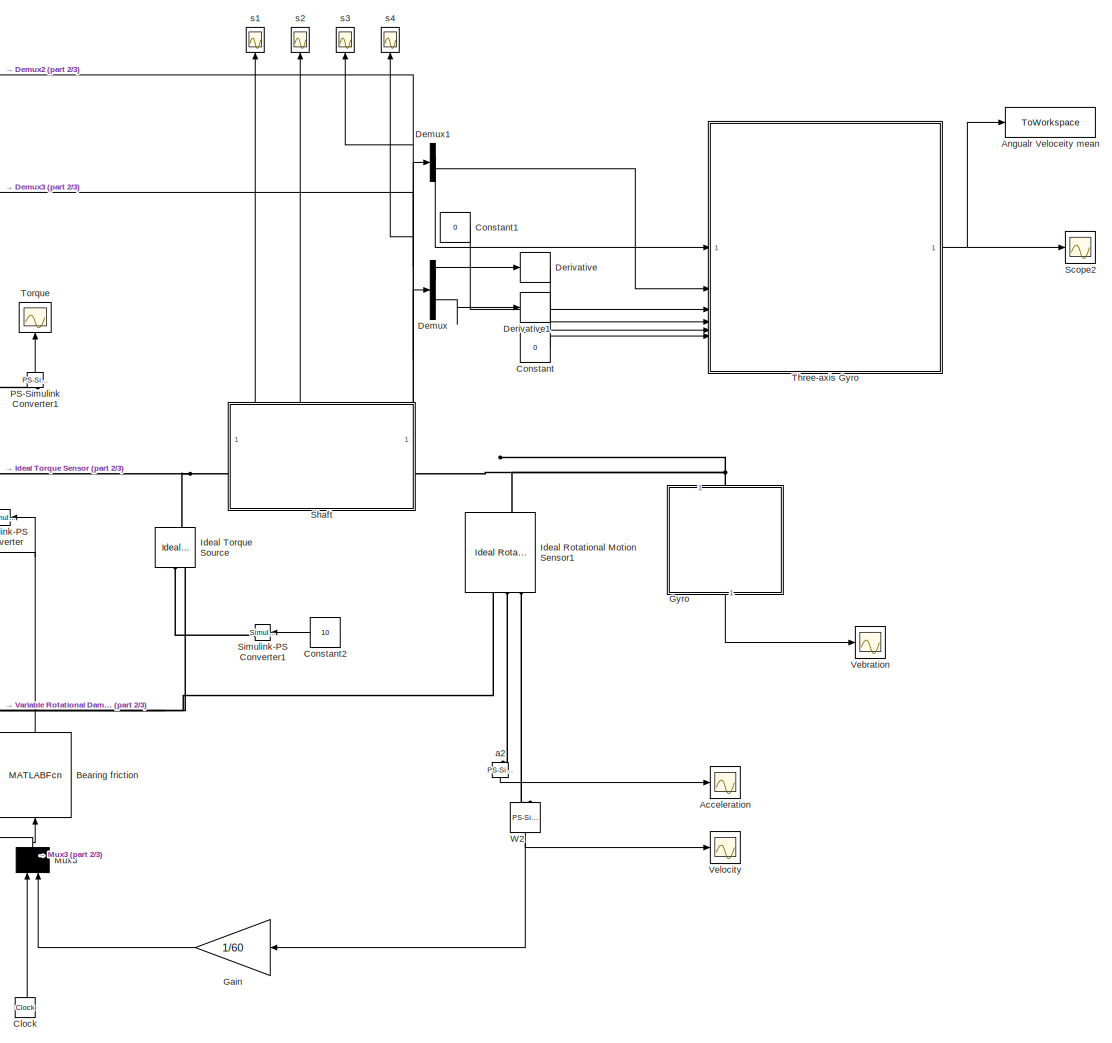
[diagram: root canvas - part 1/3, right side, full height]
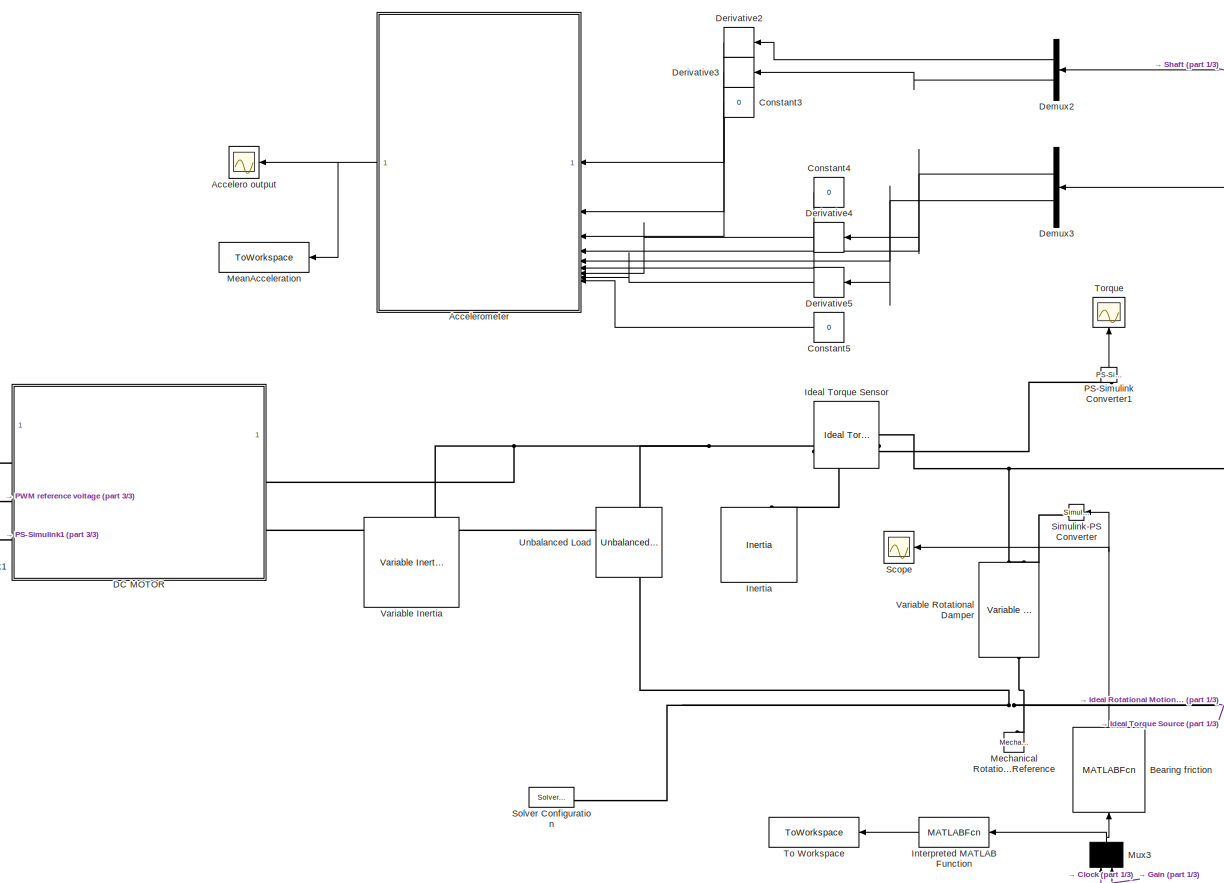
[diagram: root canvas - part 2/3, center side, full height]
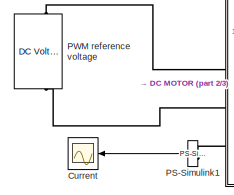
[diagram: root canvas - part 3/3, middle left region]
MODEL slx_98849718ec95
KIND model
CONFIG AbsTol = auto
CONFIG EnableMultiTasking = off
CONFIG FixedStep = auto
CONFIG MaxStep = auto
CONFIG MinStep = auto
CONFIG RelTol = 1e-3
CONFIG SampleTimeConstraint = Unconstrained
CONFIG SolverName = VariableStepAuto
CONFIG StartTime = 0.0
CONFIG StopTime = 15
BLOCK [Scope] Acceleration
  ActiveDisplayYMaximum = 102.15664
  ActiveDisplayYMinimum = -11.35074
  DataLoggingVariableName = ScopeData1
  Floating = off
  GraphicalSettings = {"GraphicalSettings":{"LegacySettings":true,"Style":{"Style":{"AxesColor":"[0 0 0]","ChannelNames":[""],"ColorOrder":"[1 0.909803921568627 0.392156862745098;0.149019607843137 0.549019607843137 0.866666666666667;0.96078431372549 0.466666666666667 0.16078431372549;0.286274509803922 0.858823529411765 0.250980392156863;0.752941176470588 0.36078431372549 0.984313725490196;0.423529411764706 0.9568627450...<+432ch>
  MultipleDisplayCache = [{"MaxYLimMag":102.15664,"MaxYLimReal":102.15664,"MinYLimMag":0,"MinYLimReal":-11.35074,"PlotAsMagnitudePhase":false,"ShowGrid":true,"ShowLegend":false,"Title":"%<SignalLabel>","YLabel":""}]
  NumInputPorts = 1
  WasSavedAsWebScope = on
BLOCK [Scope] Accelero output
  ActiveDisplayYMaximum = 11.58913
  ActiveDisplayYMinimum = -1.63436
  DataLoggingVariableName = ScopeData5
  Floating = off
  GraphicalSettings = {"Style":{"BackgroundColor":[0.12941176470588237,0.12941176470588237,0.12941176470588237],"AxesColor":[0.07058823529411765,0.07058823529411765,0.07058823529411765],"LabelsColor":[0.8509803921568627,0.8509803921568627,0.8509803921568627],"PreserveColors":false,"Visible":[true,true,true],"LineStyle":["-","-","-"],"LineWidth":[1.5,1.5,1.5],"BarWidth":[0.9,0.9,0.9],"LineColor":["auto","auto","auto"],"...<+2691ch>
  MultipleDisplayCache = [{"MaxYLimMag":11.58913,"MaxYLimReal":11.58913,"MinYLimMag":0,"MinYLimReal":-1.63436,"PlotAsMagnitudePhase":false,"ShowGrid":true,"ShowLegend":true,"Title":"%<SignalLabel>","YLabel":""}]
  NameLocation = top
  NumInputPorts = 1
  ScopeFrameLocation = window
  ShowLegend = on
  WasSavedAsWebScope = on
  WindowPosition = [1.000000,49.000000,1920.000000,1009.000000,]
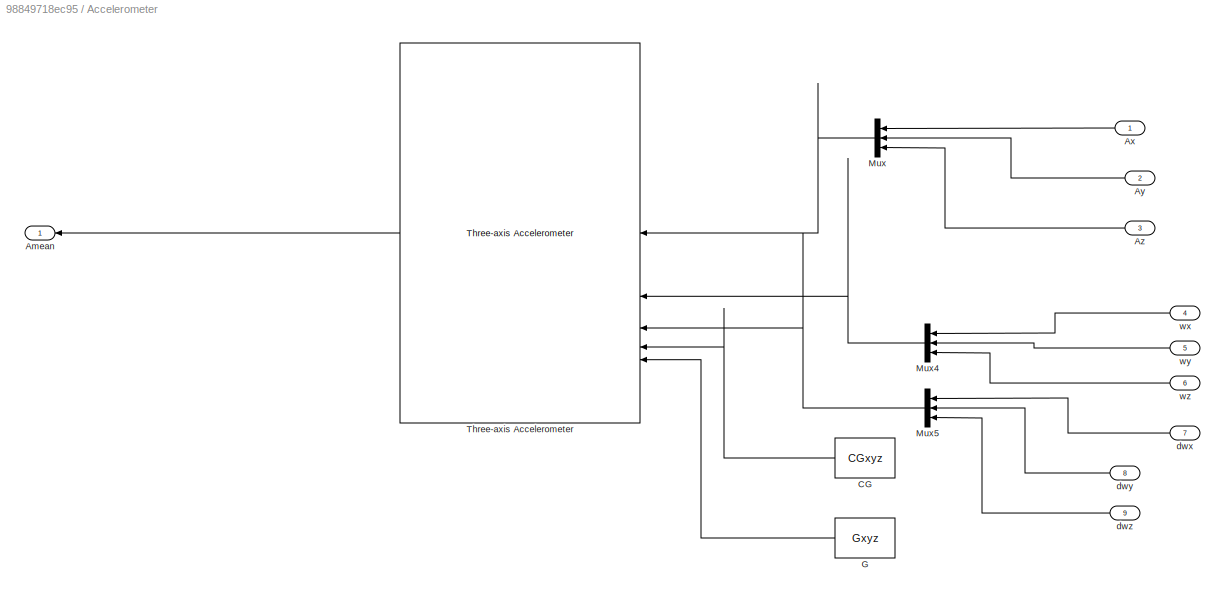
BLOCK [SubSystem] Accelerometer
  NameLocation = top
BLOCK [Outport] Accelerometer/Amean
BLOCK [Inport] Accelerometer/Ax
BLOCK [Inport] Accelerometer/Ay
  Port = 2
BLOCK [Inport] Accelerometer/Az
  Port = 3
BLOCK [Constant] Accelerometer/CG
  NameLocation = top
  Value = CGxyz
BLOCK [Constant] Accelerometer/G
  NameLocation = top
  Value = Gxyz
BLOCK [Mux] Accelerometer/Mux
  DisplayOption = bar
  Inputs = 3
  NameLocation = top
BLOCK [Mux] Accelerometer/Mux4
  DisplayOption = bar
  Inputs = 3
  NameLocation = top
BLOCK [Mux] Accelerometer/Mux5
  DisplayOption = bar
  Inputs = 3
  NameLocation = top
BLOCK [Reference] Accelerometer/Three-axis Accelerometer  REF=aerolibnav/Three-axis Accelerometer
  NameLocation = top
  SourceBlock = aerolibnav/Three-axis Accelerometer
  SourceType = Three-axis Accelerometer
BLOCK [Inport] Accelerometer/dwx
  Port = 7
BLOCK [Inport] Accelerometer/dwy
  Port = 8
BLOCK [Inport] Accelerometer/dwz
  Port = 9
BLOCK [Inport] Accelerometer/wx
  Port = 4
BLOCK [Inport] Accelerometer/wy
  Port = 5
BLOCK [Inport] Accelerometer/wz
  Port = 6
BLOCK [ToWorkspace] Angualr Veloceity mean
  Commented = on
  FixptAsFi = on
  MaxDataPoints = inf
  SampleTime = -1
  Save2DSignal = 2-D array (concatenate along first dimension)
  VariableName = gyroOut
BLOCK [MATLABFcn] Bearing friction
  MATLABFcn = bearing_stiffness
  NameLocation = right
BLOCK [Clock] Clock
  NameLocation = right
BLOCK [Constant] Constant
  Commented = on
  Value = 0
BLOCK [Constant] Constant1
  Commented = on
  Value = 0
BLOCK [Constant] Constant2
  NameLocation = top
  Value = 10
BLOCK [Constant] Constant3
  NameLocation = top
  Value = 0
BLOCK [Constant] Constant4
  NameLocation = top
  Value = 0
BLOCK [Constant] Constant5
  NameLocation = top
  Value = 0
BLOCK [Scope] Current
  ActiveDisplayYMaximum = 141.8385
  ActiveDisplayYMinimum = -15.75983
  DataLogging = on
  DataLoggingDecimateData = on
  DataLoggingDecimation = 1
  DataLoggingSaveFormat = Structure With Time
  DataLoggingVariableName = ScopeData2
  Floating = off
  GraphicalSettings = {"GraphicalSettings":{"LegacySettings":true,"Style":{"AxesScalingProperties":{"ScaleAxesLimitsAtStop":false},"Style":{"AxesColor":"[0 0 0]","ChannelNames":[""],"ColorOrder":"[1 0.909803921568627 0.392156862745098;0.149019607843137 0.549019607843137 0.866666666666667;0.96078431372549 0.466666666666667 0.16078431372549;0.286274509803922 0.858823529411765 0.250980392156863;0.752941176470588 0.3607843...<+513ch>
  MultipleDisplayCache = [{"MaxYLimMag":141.8385,"MaxYLimReal":141.8385,"MinYLimMag":0,"MinYLimReal":-15.75983,"PlotAsMagnitudePhase":false,"ShowGrid":true,"ShowLegend":false,"Title":"%<SignalLabel>","YLabel":""}]
  NameLocation = top
  NumInputPorts = 1
  TimeSpan = 10
  WasSavedAsWebScope = on
  WindowPosition = [1 49 1920 955]
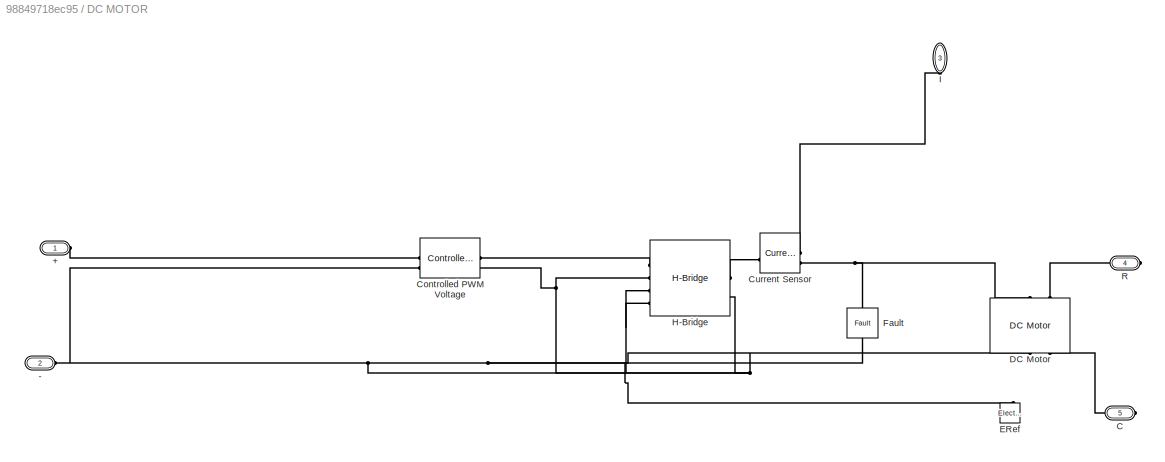
BLOCK [SubSystem] DC MOTOR
BLOCK [PMIOPort] DC MOTOR/+
  Side = Left
BLOCK [PMIOPort] DC MOTOR/-
  Port = 2
  Side = Left
BLOCK [PMIOPort] DC MOTOR/C
  Port = 5
  Side = Right
BLOCK [Reference] DC MOTOR/Controlled PWM Voltage  REF=ee_lib/Integrated Circuits/Controlled PWM
Voltage
  SourceBlock = ee_lib/Integrated Circuits/Controlled PWM\nVoltage
  SourceType = Controlled PWM\nVoltage
BLOCK [Reference] DC MOTOR/Current Sensor  REF=fl_lib/Electrical/Electrical Sensors/Current Sensor
  NameLocation = top
  SourceBlock = fl_lib/Electrical/Electrical Sensors/Current Sensor
  SourceType = Current Sensor
BLOCK [Reference] DC MOTOR/DC Motor  REF=ee_lib/Electromechanical/Brushed Motors/DC Motor
  AttributesFormatString = Maxon:RE_65_388985_24
  NameLocation = left
  SourceBlock = ee_lib/Electromechanical/Brushed Motors/DC Motor
  SourceType = DC Motor
BLOCK [Reference] DC MOTOR/ERef  REF=fl_lib/Electrical/Electrical Elements/Electrical Reference
  NameLocation = left
  SourceBlock = fl_lib/Electrical/Electrical Elements/Electrical Reference
  SourceType = Electrical Reference
BLOCK [Reference] DC MOTOR/Fault  REF=ee_lib/Utilities/Fault
  Commented = on
  NameLocation = left
  SourceBlock = ee_lib/Utilities/Fault
  SourceType = Fault
BLOCK [Reference] DC MOTOR/H-Bridge  REF=ee_lib/Semiconductors &
Converters/Converters/H-Bridge
  SourceBlock = ee_lib/Semiconductors &\nConverters/Converters/H-Bridge
  SourceType = H-Bridge
BLOCK [PMIOPort] DC MOTOR/I
  NameLocation = right
  Port = 3
  Side = Left
BLOCK [PMIOPort] DC MOTOR/R
  Port = 4
  Side = Right
BLOCK [Demux] Demux
  Commented = on
BLOCK [Demux] Demux1
  Commented = on
BLOCK [Demux] Demux2
  NameLocation = top
BLOCK [Demux] Demux3
  NameLocation = top
BLOCK [Derivative] Derivative
  Commented = on
BLOCK [Derivative] Derivative1
  Commented = on
BLOCK [Derivative] Derivative2
  NameLocation = top
BLOCK [Derivative] Derivative3
  NameLocation = top
BLOCK [Derivative] Derivative4
  NameLocation = top
BLOCK [Derivative] Derivative5
  NameLocation = top
BLOCK [Gain] Gain
  Gain = 1/60
  NameLocation = top
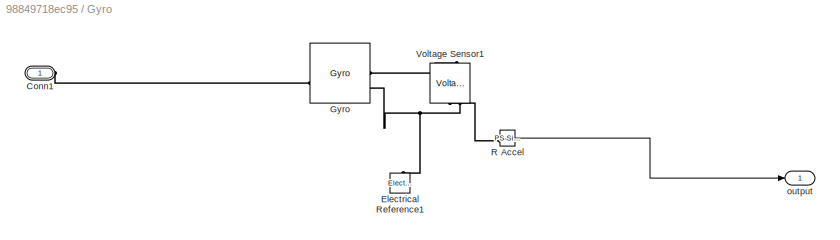
BLOCK [SubSystem] Gyro
  Commented = on
  NameLocation = left
BLOCK [PMIOPort] Gyro/Conn1
  Side = Left
BLOCK [Reference] Gyro/Electrical Reference1  REF=fl_lib/Electrical/Electrical Elements/Electrical Reference
  NameLocation = right
  SourceBlock = fl_lib/Electrical/Electrical Elements/Electrical Reference
  SourceType = Electrical Reference
BLOCK [Reference] Gyro/Gyro  REF=ee_lib/Sensors &
Transducers/Gyro
  SourceBlock = ee_lib/Sensors &\nTransducers/Gyro
  SourceType = Gyro
BLOCK [Reference] Gyro/R Accel  REF=nesl_utility/PS-Simulink
Converter
  SourceBlock = nesl_utility/PS-Simulink\nConverter
  SourceType = PS-Simulink\nConverter
BLOCK [Reference] Gyro/Voltage Sensor1  REF=fl_lib/Electrical/Electrical Sensors/Voltage Sensor
  NameLocation = right
  SourceBlock = fl_lib/Electrical/Electrical Sensors/Voltage Sensor
  SourceType = Voltage Sensor
BLOCK [Outport] Gyro/output
BLOCK [Reference] Ideal Rotational Motion Sensor1  REF=fl_lib/Mechanical/Mechanical Sensors/Ideal Rotational
Motion Sensor
  NameLocation = right
  SourceBlock = fl_lib/Mechanical/Mechanical Sensors/Ideal Rotational\nMotion Sensor
  SourceType = Ideal Rotational\nMotion Sensor
BLOCK [Reference] Ideal Torque Sensor  REF=fl_lib/Mechanical/Mechanical Sensors/Ideal Torque Sensor
  SourceBlock = fl_lib/Mechanical/Mechanical Sensors/Ideal Torque Sensor
  SourceType = Ideal Torque Sensor
BLOCK [Reference] Ideal Torque Source  REF=fl_lib/Mechanical/Mechanical Sources/Ideal Torque Source
  Commented = on
  NameLocation = right
  SourceBlock = fl_lib/Mechanical/Mechanical Sources/Ideal Torque Source
  SourceType = Ideal Torque Source
BLOCK [Reference] Inertia  REF=fl_lib/Mechanical/Rotational Elements/Inertia
  NameLocation = right
  SourceBlock = fl_lib/Mechanical/Rotational Elements/Inertia
  SourceType = Inertia
BLOCK [MATLABFcn] Interpreted MATLAB Function
  MATLABFcn = damping
  NameLocation = top
BLOCK [ToWorkspace] MeanAcceleration
  FixptAsFi = on
  MaxDataPoints = inf
  NameLocation = top
  SampleTime = -1
  Save2DSignal = 2-D array (concatenate along first dimension)
  SaveFormat = Structure With Time
  VariableName = AcceleroOut
BLOCK [Reference] Mechanical Rotational Reference  REF=fl_lib/Mechanical/Rotational Elements/Mechanical
Rotational Reference
  NameLocation = right
  SourceBlock = fl_lib/Mechanical/Rotational Elements/Mechanical\nRotational Reference
  SourceType = Mechanical\nRotational Reference
BLOCK [Mux] Mux3
  DisplayOption = bar
  Inputs = 2
  NameLocation = right
BLOCK [Reference] PS-Simulink Converter1  REF=nesl_utility/PS-Simulink
Converter
  NameLocation = right
  SourceBlock = nesl_utility/PS-Simulink\nConverter
  SourceType = PS-Simulink\nConverter
BLOCK [Reference] PS-Simulink1  REF=nesl_utility/PS-Simulink
Converter
  NameLocation = top
  SourceBlock = nesl_utility/PS-Simulink\nConverter
  SourceType = PS-Simulink\nConverter
BLOCK [Reference] PWM reference voltage  REF=fl_lib/Electrical/Electrical Sources/DC Voltage Source
  NameLocation = right
  SourceBlock = fl_lib/Electrical/Electrical Sources/DC Voltage Source
  SourceType = DC Voltage Source
BLOCK [Scope] Scope
  ActiveDisplayYMaximum = 0.1125
  ActiveDisplayYMinimum = 0.0875
  Commented = on
  DataLoggingVariableName = ScopeData1
  Floating = off
  GraphicalSettings = {"GraphicalSettings":{"LegacySettings":true,"Style":{"Style":{"AxesColor":"[0 0 0]","ChannelNames":[""],"ColorOrder":"[1 0.909803921568627 0.392156862745098;0.149019607843137 0.549019607843137 0.866666666666667;0.96078431372549 0.466666666666667 0.16078431372549;0.286274509803922 0.858823529411765 0.250980392156863;0.752941176470588 0.36078431372549 0.984313725490196;0.423529411764706 0.9568627450...<+432ch>
  MultipleDisplayCache = [{"MaxYLimMag":0.1125,"MaxYLimReal":0.1125,"MinYLimMag":0.0875,"MinYLimReal":0.0875,"PlotAsMagnitudePhase":false,"ShowGrid":true,"ShowLegend":false,"Title":"%<SignalLabel>","YLabel":""}]
  NameLocation = top
  NumInputPorts = 1
  WasSavedAsWebScope = on
  WindowPosition = [1 49 1920 955]
BLOCK [Scope] Scope2
  ActiveDisplayYMaximum = 0.11963
  ActiveDisplayYMinimum = -0.10232
  Commented = on
  DataLoggingVariableName = ScopeData6
  Floating = off
  GraphicalSettings = {"GraphicalSettings":{"LegacySettings":true,"Style":{"Style":{"AxesColor":"[0 0 0]","ChannelNames":[""],"ColorOrder":"[1 0.909803921568627 0.392156862745098;0.149019607843137 0.549019607843137 0.866666666666667;0.96078431372549 0.466666666666667 0.16078431372549;0.286274509803922 0.858823529411765 0.250980392156863;0.752941176470588 0.36078431372549 0.984313725490196;0.423529411764706 0.9568627450...<+438ch>
  MultipleDisplayCache = [{"MaxYLimMag":0.11963,"MaxYLimReal":0.11963,"MinYLimMag":0,"MinYLimReal":-0.10232,"PlotAsMagnitudePhase":false,"ShowGrid":true,"ShowLegend":false,"Title":"%<SignalLabel>","YLabel":""}]
  NumInputPorts = 1
  WasSavedAsWebScope = on
  WindowPosition = [1 49 1920 955]
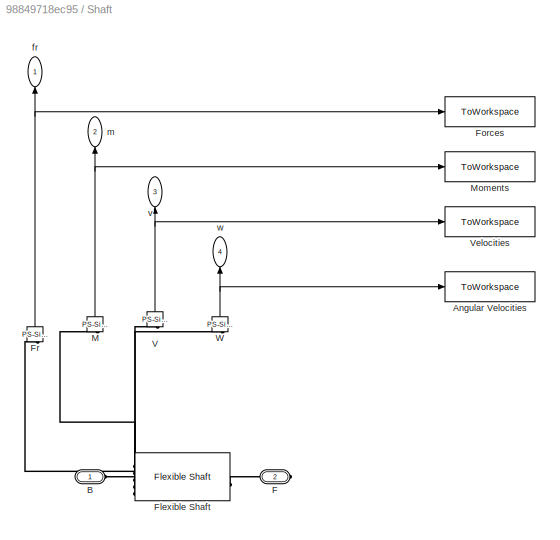
BLOCK [SubSystem] Shaft
  PortSchema = {"entries":[{"content":{"sides":[{"content":{"connectorIds":["LConn1"]},"type":"ConnectorPlacement.EquallySpacedRectSide","uuid":"3857fe44-01bc-4751-8e4d-1dad1ce500eb"},{"content":{"connectorIds":["RConn1"],"side":"RIGHT"},"type":"ConnectorPlacement.EquallySpacedRectSide","uuid":"6a019b46-4414-4623-8f21-6865903b21bc"},{"content":{"connectorIds":["Out1","Out2","Out3","Out4"],"side":"TOP"},"type":"C...<+272ch>
BLOCK [ToWorkspace] Shaft/Angular Velocities
  FixptAsFi = on
  MaxDataPoints = inf
  SampleTime = -1
  Save2DSignal = 2-D array (concatenate along first dimension)
  VariableName = W
BLOCK [PMIOPort] Shaft/B
  Side = Left
BLOCK [PMIOPort] Shaft/F
  Port = 2
  Side = Right
BLOCK [Reference] Shaft/Flexible Shaft  REF=sdl_lib/Couplings & Drives/Flexible Shaft
  SourceBlock = sdl_lib/Couplings & Drives/Flexible Shaft
  SourceType = Flexible Shaft
BLOCK [ToWorkspace] Shaft/Forces
  FixptAsFi = on
  MaxDataPoints = inf
  SampleTime = -1
  Save2DSignal = 2-D array (concatenate along first dimension)
  VariableName = Fr
BLOCK [Reference] Shaft/Fr  REF=nesl_utility/PS-Simulink
Converter
  NameLocation = right
  SourceBlock = nesl_utility/PS-Simulink\nConverter
  SourceType = PS-Simulink\nConverter
BLOCK [Reference] Shaft/M  REF=nesl_utility/PS-Simulink
Converter
  NameLocation = right
  SourceBlock = nesl_utility/PS-Simulink\nConverter
  SourceType = PS-Simulink\nConverter
BLOCK [ToWorkspace] Shaft/Moments
  FixptAsFi = on
  MaxDataPoints = inf
  SampleTime = -1
  Save2DSignal = 2-D array (concatenate along first dimension)
  VariableName = M
BLOCK [Reference] Shaft/V  REF=nesl_utility/PS-Simulink
Converter
  NameLocation = right
  SourceBlock = nesl_utility/PS-Simulink\nConverter
  SourceType = PS-Simulink\nConverter
BLOCK [ToWorkspace] Shaft/Velocities
  FixptAsFi = on
  MaxDataPoints = inf
  SampleTime = -1
  Save2DSignal = 2-D array (concatenate along first dimension)
  VariableName = V
BLOCK [Reference] Shaft/W  REF=nesl_utility/PS-Simulink
Converter
  NameLocation = right
  SourceBlock = nesl_utility/PS-Simulink\nConverter
  SourceType = PS-Simulink\nConverter
BLOCK [Outport] Shaft/fr
  NameLocation = right
BLOCK [Outport] Shaft/m
  NameLocation = right
  Port = 2
BLOCK [Outport] Shaft/v
  NameLocation = right
  Port = 3
BLOCK [Outport] Shaft/w
  NameLocation = right
  Port = 4
BLOCK [Reference] Simulink-PS Converter  REF=nesl_utility/Simulink-PS
Converter
  Commented = on
  SourceBlock = nesl_utility/Simulink-PS\nConverter
  SourceType = Simulink-PS\nConverter
BLOCK [Reference] Simulink-PS Converter1  REF=nesl_utility/Simulink-PS
Converter
  NameLocation = top
  SourceBlock = nesl_utility/Simulink-PS\nConverter
  SourceType = Simulink-PS\nConverter
BLOCK [Reference] Solver Configuration  REF=nesl_utility/Solver
Configuration
  SourceBlock = nesl_utility/Solver\nConfiguration
  SourceType = Solver\nConfiguration
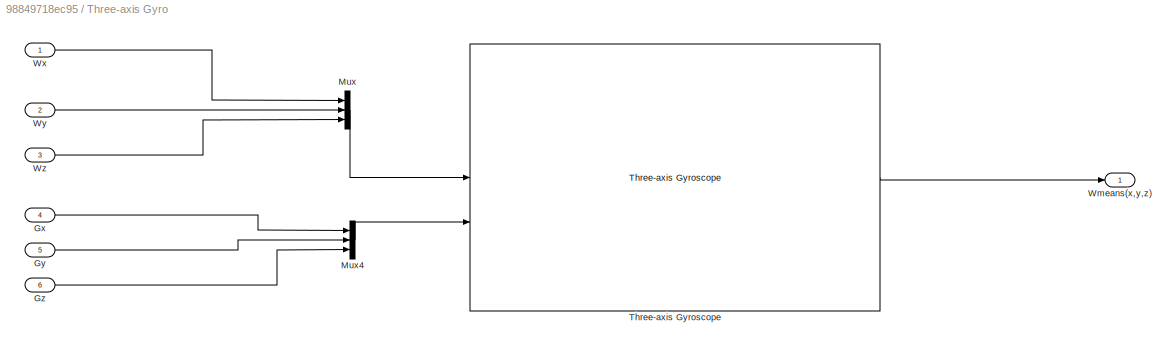
BLOCK [SubSystem] Three-axis Gyro
  Commented = on
BLOCK [Inport] Three-axis Gyro/Gx
  Port = 4
BLOCK [Inport] Three-axis Gyro/Gy
  Port = 5
BLOCK [Inport] Three-axis Gyro/Gz
  Port = 6
BLOCK [Mux] Three-axis Gyro/Mux
  DisplayOption = bar
  Inputs = 3
BLOCK [Mux] Three-axis Gyro/Mux4
  DisplayOption = bar
  Inputs = 3
BLOCK [Reference] Three-axis Gyro/Three-axis Gyroscope  REF=aerolibnav/Three-axis Gyroscope
  SourceBlock = aerolibnav/Three-axis Gyroscope
  SourceType = Three-axis Gyroscope
BLOCK [Outport] Three-axis Gyro/Wmeans(x,y,z)
BLOCK [Inport] Three-axis Gyro/Wx
BLOCK [Inport] Three-axis Gyro/Wy
  Port = 2
BLOCK [Inport] Three-axis Gyro/Wz
  Port = 3
BLOCK [ToWorkspace] To Workspace
  FixptAsFi = on
  MaxDataPoints = inf
  NameLocation = top
  SampleTime = -1
  VariableName = damp
BLOCK [Scope] Torque
  ActiveDisplayYMaximum = 2.30248
  ActiveDisplayYMinimum = -0.25583
  DataLoggingVariableName = ScopeData7
  Floating = off
  GraphicalSettings = {"GraphicalSettings":{"LegacySettings":true,"Style":{"AxesScalingProperties":{"ScaleAxesLimitsAtStop":false},"Stats":{"Enabled":"true"},"Style":{"AxesColor":"[0 0 0]","ChannelNames":[""],"ColorOrder":"[1 0.909803921568627 0.392156862745098;0.149019607843137 0.549019607843137 0.866666666666667;0.96078431372549 0.466666666666667 0.16078431372549;0.286274509803922 0.858823529411765 0.250980392156863;...<+655ch>
  MultipleDisplayCache = [{"MaxYLimMag":2.30248,"MaxYLimReal":2.30248,"MinYLimMag":0,"MinYLimReal":-0.25583,"PlotAsMagnitudePhase":false,"ShowGrid":true,"ShowLegend":true,"Title":"%<SignalLabel>","YLabel":""}]
  NameLocation = right
  NumInputPorts = 1
  ShowLegend = on
  WasSavedAsWebScope = on
  WindowPosition = [1 49 1920 955]
BLOCK [Reference] Unbalanced Load  REF=sdl_lib/Inertias & Loads/Unbalanced Load
  Commented = on
  NameLocation = right
  SourceBlock = sdl_lib/Inertias & Loads/Unbalanced Load
  SourceType = Unbalanced Load
BLOCK [Reference] Variable Inertia  REF=sdl_lib/Inertias & Loads/Variable Inertia
  Commented = on
  NameLocation = right
  SourceBlock = sdl_lib/Inertias & Loads/Variable Inertia
  SourceType = Variable Inertia
BLOCK [Reference] Variable Rotational Damper  REF=sdl_lib/Couplings & Drives/Springs & Dampers/Variable Rotational
Damper
  Commented = on
  NameLocation = left
  SourceBlock = sdl_lib/Couplings & Drives/Springs & Dampers/Variable Rotational\nDamper
  SourceType = Variable Rotational\nDamper
BLOCK [Scope] Vebration
  ActiveDisplayYMaximum = 4.00000000000009
  ActiveDisplayYMinimum = 3.99999999999988
  Commented = on
  DataLoggingVariableName = ScopeData8
  Floating = off
  GraphicalSettings = {"GraphicalSettings":{"LegacySettings":true,"Style":{"AxesScalingProperties":{"ScaleAxesLimitsAtStop":false},"Stats":{"Enabled":"true"},"Style":{"AxesColor":"[0 0 0]","ChannelNames":[""],"ColorOrder":"[1 0.909803921568627 0.392156862745098;0.149019607843137 0.549019607843137 0.866666666666667;0.96078431372549 0.466666666666667 0.16078431372549;0.286274509803922 0.858823529411765 0.250980392156863;...<+563ch>
  MultipleDisplayCache = [{"MaxYLimMag":4.00000000000009,"MaxYLimReal":4.00000000000009,"MinYLimMag":3.99999999999988,"MinYLimReal":3.99999999999988,"PlotAsMagnitudePhase":false,"ShowGrid":true,"ShowLegend":false,"Title":"%<SignalLabel>","YLabel":""}]
  NumInputPorts = 1
  WasSavedAsWebScope = on
  WindowPosition = [1 49 1920 955]
BLOCK [Scope] Velocity
  ActiveDisplayYMaximum = 1706.12975
  ActiveDisplayYMinimum = 1665.13861
  DataLoggingVariableName = ScopeData2
  Floating = off
  GraphicalSettings = {"GraphicalSettings":{"LegacySettings":true,"Style":{"AxesScalingProperties":{"ScaleAxesLimitsAtStop":false},"Style":{"AxesColor":"[0 0 0]","ChannelNames":[""],"ColorOrder":"[1 0.909803921568627 0.392156862745098;0.149019607843137 0.549019607843137 0.866666666666667;0.96078431372549 0.466666666666667 0.16078431372549;0.286274509803922 0.858823529411765 0.250980392156863;0.752941176470588 0.3607843...<+488ch>
  MultipleDisplayCache = [{"MaxYLimMag":1706.12975,"MaxYLimReal":1706.12975,"MinYLimMag":1665.13861,"MinYLimReal":1665.13861,"PlotAsMagnitudePhase":false,"ShowGrid":true,"ShowLegend":false,"Title":"%<SignalLabel>","YLabel":""}]
  NumInputPorts = 1
  WasSavedAsWebScope = on
  WindowPosition = [1 49 1920 955]
BLOCK [Reference] W2  REF=nesl_utility/PS-Simulink
Converter
  NameLocation = left
  SourceBlock = nesl_utility/PS-Simulink\nConverter
  SourceType = PS-Simulink\nConverter
BLOCK [Reference] a2  REF=nesl_utility/PS-Simulink
Converter
  NameLocation = left
  SourceBlock = nesl_utility/PS-Simulink\nConverter
  SourceType = PS-Simulink\nConverter
BLOCK [Scope] s1
  ActiveDisplayYMaximum = 103.51357
  ActiveDisplayYMinimum = -163.69257
  DataLoggingVariableName = ScopeData9
  Floating = off
  GraphicalSettings = {"GraphicalSettings":{"LegacySettings":true,"Style":{"AxesScalingProperties":{"ScaleAxesLimitsAtStop":false},"Style":{"AxesColor":"[0 0 0]","ChannelNames":[""],"ColorOrder":"[1 0.909803921568627 0.392156862745098;0.149019607843137 0.549019607843137 0.866666666666667;0.96078431372549 0.466666666666667 0.16078431372549;0.286274509803922 0.858823529411765 0.250980392156863;0.752941176470588 0.3607843...<+636ch>
  MultipleDisplayCache = [{"MaxYLimMag":163.69257,"MaxYLimReal":103.51357,"MinYLimMag":0,"MinYLimReal":-163.69257,"PlotAsMagnitudePhase":false,"ShowGrid":true,"ShowLegend":true,"Title":"%<SignalLabel>","YLabel":""}]
  NameLocation = right
  NumInputPorts = 1
  ShowLegend = on
  WasSavedAsWebScope = on
  WindowPosition = [1 49 1920 955]
BLOCK [Scope] s2
  ActiveDisplayYMaximum = 107.147
  ActiveDisplayYMinimum = -107.14777
  DataLoggingVariableName = ScopeData10
  Floating = off
  GraphicalSettings = {"GraphicalSettings":{"LegacySettings":true,"Style":{"Style":{"AxesColor":"[0 0 0]","ChannelNames":[""],"ColorOrder":"[1 0.909803921568627 0.392156862745098;0.149019607843137 0.549019607843137 0.866666666666667;0.96078431372549 0.466666666666667 0.16078431372549;0.286274509803922 0.858823529411765 0.250980392156863;0.752941176470588 0.36078431372549 0.984313725490196;0.423529411764706 0.9568627450...<+441ch>
  MultipleDisplayCache = [{"MaxYLimMag":107.14777,"MaxYLimReal":107.147,"MinYLimMag":0,"MinYLimReal":-107.14777,"PlotAsMagnitudePhase":false,"ShowGrid":true,"ShowLegend":false,"Title":"%<SignalLabel>","YLabel":""}]
  NameLocation = right
  NumInputPorts = 1
  WasSavedAsWebScope = on
  WindowPosition = [1 49 1920 955]
BLOCK [Scope] s3
  ActiveDisplayYMaximum = 0.01046
  ActiveDisplayYMinimum = -0.01046
  DataLoggingVariableName = ScopeData11
  Floating = off
  GraphicalSettings = {"GraphicalSettings":{"LegacySettings":true,"Style":{"Cursors":{"CursorChannels":"[1 1]","Enabled":"true","Horizontal":"false","LinkToWaveform":"true","LockSpacing":"false","SnapToData":"false","XLocation":"[7.50000000000002 22.5000000000001]","YLocation":"[NaN NaN]"},"Style":{"AxesColor":"[0 0 0]","ChannelNames":[""],"ColorOrder":"[1 0.909803921568627 0.392156862745098;0.149019607843137 0.5490196...<+791ch>
  MultipleDisplayCache = [{"MaxYLimMag":0.01046,"MaxYLimReal":0.01046,"MinYLimMag":0,"MinYLimReal":-0.01046,"PlotAsMagnitudePhase":false,"ShowGrid":true,"ShowLegend":false,"Title":"%<SignalLabel>","YLabel":""}]
  NameLocation = right
  NumInputPorts = 1
  WasSavedAsWebScope = on
  WindowPosition = [1 49 1920 955]
BLOCK [Scope] s4
  ActiveDisplayYMaximum = 0.01718
  ActiveDisplayYMinimum = -0.01718
  Floating = off
  GraphicalSettings = {"GraphicalSettings":{"LegacySettings":true,"Style":{"Cursors":{"CursorChannels":"[1 1]","Enabled":"true","Horizontal":"false","LinkToWaveform":"true","LockSpacing":"false","SnapToData":"false","XLocation":"[7.50000000000002 22.5000000000001]","YLocation":"[NaN NaN]"},"Style":{"AxesColor":"[0 0 0]","ChannelNames":[""],"ColorOrder":"[1 0.909803921568627 0.392156862745098;0.149019607843137 0.5490196...<+889ch>
  MultipleDisplayCache = [{"MaxYLimMag":0.01718,"MaxYLimReal":0.01718,"MinYLimMag":0,"MinYLimReal":-0.01718,"PlotAsMagnitudePhase":false,"ShowGrid":true,"ShowLegend":true,"Title":"%<SignalLabel>","YLabel":""}]
  NameLocation = right
  NumInputPorts = 1
  ShowLegend = on
  WasSavedAsWebScope = on
  WindowPosition = [1 49 1920 955]
LINE Accelerometer/Ax:1 -> Accelerometer/Mux:1
LINE Accelerometer/Ay:1 -> Accelerometer/Mux:2
LINE Accelerometer/Az:1 -> Accelerometer/Mux:3
LINE Accelerometer/CG:1 -> Accelerometer/Three-axis Accelerometer:4
LINE Accelerometer/G:1 -> Accelerometer/Three-axis Accelerometer:5
LINE Accelerometer/Mux4:1 -> Accelerometer/Three-axis Accelerometer:2
LINE Accelerometer/Mux5:1 -> Accelerometer/Three-axis Accelerometer:3
LINE Accelerometer/Mux:1 -> Accelerometer/Three-axis Accelerometer:1
LINE Accelerometer/Three-axis Accelerometer:1 -> Accelerometer/Amean:1
LINE Accelerometer/dwx:1 -> Accelerometer/Mux5:1
LINE Accelerometer/dwy:1 -> Accelerometer/Mux5:2
LINE Accelerometer/dwz:1 -> Accelerometer/Mux5:3
LINE Accelerometer/wx:1 -> Accelerometer/Mux4:1
LINE Accelerometer/wy:1 -> Accelerometer/Mux4:2
LINE Accelerometer/wz:1 -> Accelerometer/Mux4:3
NET Accelerometer:1 -> Accelero output:1, MeanAcceleration:1
NET Bearing friction:1 -> Scope:1, Simulink-PS Converter:1
LINE Clock:1 -> Mux3:1
LINE Constant1:1 -> Three-axis Gyro:3
LINE Constant2:1 -> Simulink-PS Converter1:1
LINE Constant3:1 -> Accelerometer:3
LINE Constant4:1 -> Accelerometer:6
LINE Constant5:1 -> Accelerometer:9
LINE Constant:1 -> Three-axis Gyro:6
LINE Demux1:1 -> Three-axis Gyro:1
LINE Demux1:2 -> Three-axis Gyro:2
LINE Demux2:1 -> Derivative2:1
LINE Demux2:2 -> Derivative3:1
NET Demux3:1 -> Accelerometer:4, Derivative4:1
NET Demux3:2 -> Accelerometer:5, Derivative5:1
LINE Demux:1 -> Derivative:1
LINE Demux:2 -> Derivative1:1
LINE Derivative1:1 -> Three-axis Gyro:5
LINE Derivative2:1 -> Accelerometer:1
LINE Derivative3:1 -> Accelerometer:2
LINE Derivative4:1 -> Accelerometer:7
LINE Derivative5:1 -> Accelerometer:8
LINE Derivative:1 -> Three-axis Gyro:4
LINE Gain:1 -> Mux3:2
LINE Gyro/R Accel:1 -> Gyro/output:1
LINE Gyro:1 -> Vebration:1
LINE Interpreted MATLAB Function:1 -> To Workspace:1
NET Mux3:1 -> Bearing friction:1, Interpreted MATLAB Function:1
LINE PS-Simulink Converter1:1 -> Torque:1
LINE PS-Simulink1:1 -> Current:1
NET Shaft/Fr:1 -> Shaft/Forces:1, Shaft/fr:1
NET Shaft/M:1 -> Shaft/Moments:1, Shaft/m:1
NET Shaft/V:1 -> Shaft/Velocities:1, Shaft/v:1
NET Shaft/W:1 -> Shaft/Angular Velocities:1, Shaft/w:1
LINE Shaft:1 -> s1:1
LINE Shaft:2 -> s2:1
NET Shaft:3 -> Demux2:1, Demux:1, s3:1
NET Shaft:4 -> Demux1:1, Demux3:1, s4:1
LINE Three-axis Gyro/Gx:1 -> Three-axis Gyro/Mux4:1
LINE Three-axis Gyro/Gy:1 -> Three-axis Gyro/Mux4:2
LINE Three-axis Gyro/Gz:1 -> Three-axis Gyro/Mux4:3
LINE Three-axis Gyro/Mux4:1 -> Three-axis Gyro/Three-axis Gyroscope:2
LINE Three-axis Gyro/Mux:1 -> Three-axis Gyro/Three-axis Gyroscope:1
LINE Three-axis Gyro/Three-axis Gyroscope:1 -> Three-axis Gyro/Wmeans(x,y,z):1
LINE Three-axis Gyro/Wx:1 -> Three-axis Gyro/Mux:1
LINE Three-axis Gyro/Wy:1 -> Three-axis Gyro/Mux:2
LINE Three-axis Gyro/Wz:1 -> Three-axis Gyro/Mux:3
NET Three-axis Gyro:1 -> Angualr Veloceity mean:1, Scope2:1
NET W2:1 -> Gain:1, Velocity:1
LINE a2:1 -> Acceleration:1
PLINE DC MOTOR/+:RConn1 -- DC MOTOR/Controlled PWM Voltage:LConn1
PNET net1: DC MOTOR/-:RConn1 -- DC MOTOR/Controlled PWM Voltage:LConn2 -- DC MOTOR/Controlled PWM Voltage:RConn2 -- DC MOTOR/DC Motor:RConn1 -- DC MOTOR/ERef:LConn1 -- DC MOTOR/Fault:RConn1 -- DC MOTOR/H-Bridge:LConn2 -- DC MOTOR/H-Bridge:LConn3 -- DC MOTOR/H-Bridge:LConn4 -- DC MOTOR/H-Bridge:RConn2
PLINE DC MOTOR/C:RConn1 -- DC MOTOR/DC Motor:RConn2
PLINE DC MOTOR/Controlled PWM Voltage:RConn1 -- DC MOTOR/H-Bridge:LConn1
PLINE DC MOTOR/Current Sensor:LConn1 -- DC MOTOR/H-Bridge:RConn1
PLINE DC MOTOR/Current Sensor:RConn1 -- DC MOTOR/I:RConn1
PNET net2: DC MOTOR/Current Sensor:RConn2 -- DC MOTOR/DC Motor:LConn1 -- DC MOTOR/Fault:LConn1
PLINE DC MOTOR/DC Motor:LConn2 -- DC MOTOR/R:RConn1
PLINE DC MOTOR:LConn1 -- PWM reference voltage:LConn1
PLINE DC MOTOR:LConn2 -- PWM reference voltage:RConn1
PLINE DC MOTOR:LConn3 -- PS-Simulink1:LConn1
PNET net3: DC MOTOR:RConn1 -- Ideal Torque Sensor:LConn1 -- Inertia:LConn1 -- Unbalanced Load:LConn1 -- Variable Inertia:LConn2
PNET net4: DC MOTOR:RConn2 -- Ideal Rotational Motion Sensor1:RConn1 -- Ideal Torque Source:RConn2 -- Mechanical Rotational Reference:LConn1 -- Solver Configuration:RConn1 -- Variable Rotational Damper:RConn1
PLINE Gyro/Conn1:RConn1 -- Gyro/Gyro:LConn1
PNET net5: Gyro/Electrical Reference1:LConn1 -- Gyro/Gyro:RConn2 -- Gyro/Voltage Sensor1:RConn2
PLINE Gyro/Gyro:RConn1 -- Gyro/Voltage Sensor1:LConn1
PLINE Gyro/R Accel:LConn1 -- Gyro/Voltage Sensor1:RConn1
PNET net6: Gyro:LConn1 -- Ideal Rotational Motion Sensor1:LConn1 -- Shaft:RConn1
PLINE Ideal Rotational Motion Sensor1:RConn2 -- a2:LConn1
PLINE Ideal Rotational Motion Sensor1:RConn3 -- W2:LConn1
PNET net7: Ideal Torque Sensor:RConn1 -- Ideal Torque Source:LConn1 -- Shaft:LConn1 -- Variable Rotational Damper:LConn2
PLINE Ideal Torque Sensor:RConn2 -- PS-Simulink Converter1:LConn1
PLINE Ideal Torque Source:RConn1 -- Simulink-PS Converter1:RConn1
PLINE Shaft/B:RConn1 -- Shaft/Flexible Shaft:LConn1
PLINE Shaft/F:RConn1 -- Shaft/Flexible Shaft:RConn1
PLINE Shaft/Flexible Shaft:RConn2 -- Shaft/Fr:LConn1
PLINE Shaft/Flexible Shaft:RConn3 -- Shaft/M:LConn1
PLINE Shaft/Flexible Shaft:RConn4 -- Shaft/V:LConn1
PLINE Shaft/Flexible Shaft:RConn5 -- Shaft/W:LConn1
PLINE Simulink-PS Converter:RConn1 -- Variable Rotational Damper:LConn1
note: NET lines group one-source signal fan-out (src -> all destinations, sorted); 1:1 wires keep LINE; PNET lines group multi-terminal physical nets as a canonical sorted terminal list (undirected conserving connections); 2-terminal nets keep the pairwise PLINE form
